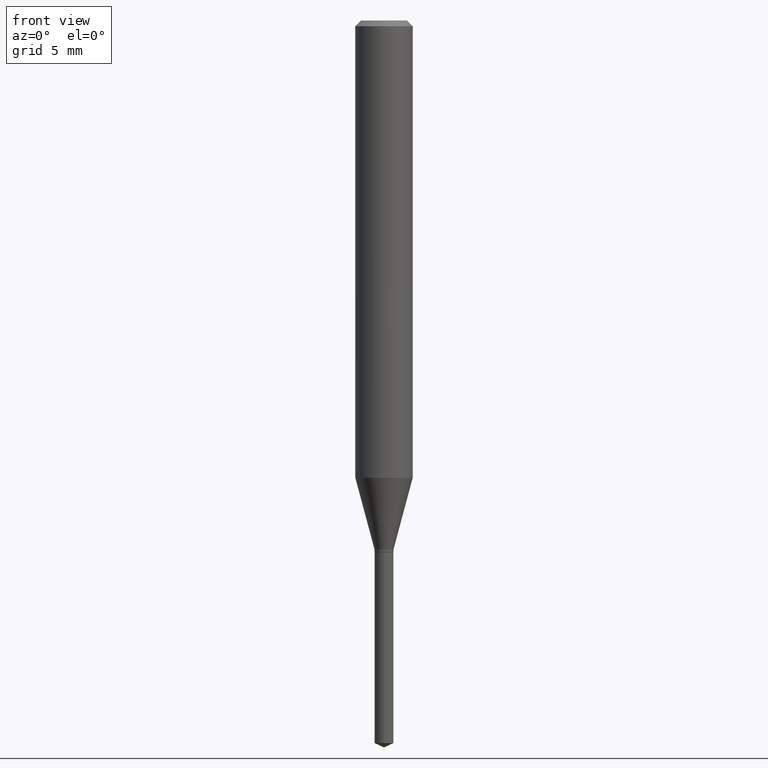
[diagram: clean part render]
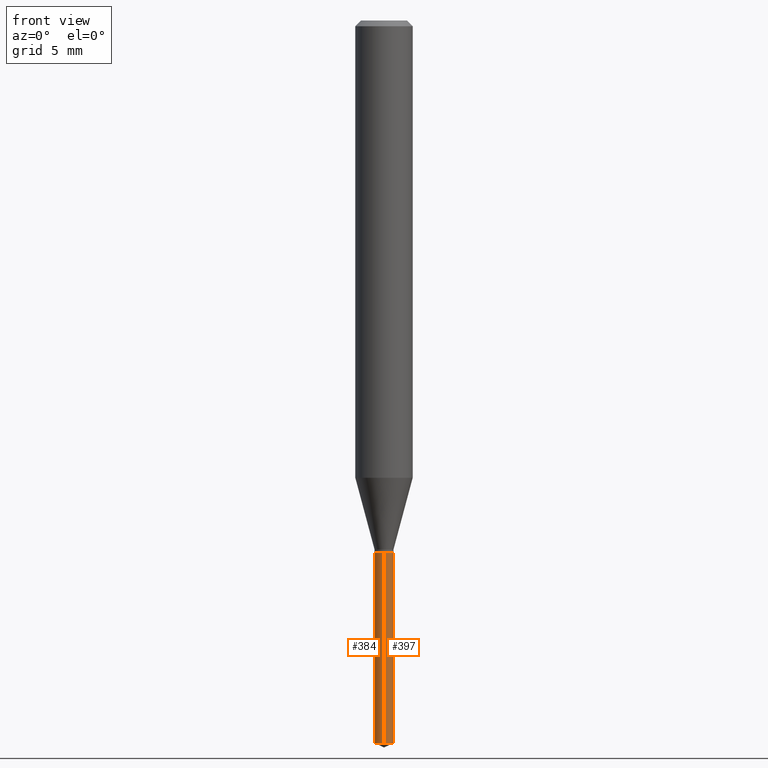
[diagram: same view with one multi-face feature highlighted, each face labeled with its STEP entity id]
A machine part, front view. The highlighted faces form ONE feature: a constant-radius fillet chain: 2 tangent blend faces with common blend radius 0.4953 mm. The faces share edges in the B-rep.
Their STEP definitions:
[1] entity #384 (Cylinder):
#24 = DIRECTION ( 'NONE',  ( -6.982962677686264344E-15, -1.000000000000000000, 0.000000000000000000 ) ) ;
#49 = EDGE_CURVE ( 'NONE', #75, #490, #120, .T. ) ;
#68 = ORIENTED_EDGE ( 'NONE', *, *, #451, .T. ) ;
#75 = VERTEX_POINT ( 'NONE', #325 ) ;
#76 = DIRECTION ( 'NONE',  ( -6.982962677686264344E-15, -1.000000000000000000, 0.000000000000000000 ) ) ;
#78 = VECTOR ( 'NONE', #386, 39.37007874015748143 ) ;
#86 = EDGE_LOOP ( 'NONE', ( #453, #378, #68, #192 ) ) ;
#106 = VERTEX_POINT ( 'NONE', #245 ) ;
#120 = CIRCLE ( 'NONE', #185, 0.01949999999999999997 ) ;
#125 = DIRECTION ( 'NONE',  ( -6.982962677686264344E-15, -1.000000000000000000, 0.000000000000000000 ) ) ;
#126 = LINE ( 'NONE', #238, #276 ) ;
#166 = EDGE_CURVE ( 'NONE', #106, #372, #283, .T. ) ;
#169 = DIRECTION ( 'NONE',  ( -2.445460715294871217E-29, 3.491492925458510144E-15, 1.000000000000000000 ) ) ;
#185 = AXIS2_PLACEMENT_3D ( 'NONE', #199, #200, #125 ) ;
#192 = ORIENTED_EDGE ( 'NONE', *, *, #166, .F. ) ;
#193 = EDGE_CURVE ( 'NONE', #75, #106, #389, .T. ) ;
#199 = CARTESIAN_POINT ( 'NONE',  ( 3.636426058976498027E-29, -5.191861741382022382E-15, -1.487007000665977685 ) ) ;
#200 = DIRECTION ( 'NONE',  ( -2.445460715294871217E-29, 3.491492925458510144E-15, 1.000000000000000000 ) ) ;
#230 = CARTESIAN_POINT ( 'NONE',  ( 2.676565608369631794E-29, -3.821426325363822773E-15, -1.094499999999999806 ) ) ;
#238 = CARTESIAN_POINT ( 'NONE',  ( -1.361677722148554121E-16, -0.01950000000000381983, -1.094499999999999806 ) ) ;
#245 = CARTESIAN_POINT ( 'NONE',  ( 1.385558334732559469E-16, 0.01949999999999617664, -1.094499999999999806 ) ) ;
#276 = VECTOR ( 'NONE', #169, 39.37007874015748143 ) ;
#280 = DIRECTION ( 'NONE',  ( -2.445460715294871217E-29, 3.491492925458510144E-15, 1.000000000000000000 ) ) ;
#283 = CIRCLE ( 'NONE', #425, 0.01949999999999999997 ) ;
#325 = CARTESIAN_POINT ( 'NONE',  ( 1.385558334732558236E-16, 0.01949999999999480274, -1.487007000665977685 ) ) ;
#342 = DIRECTION ( 'NONE',  ( -2.445460715294871217E-29, 3.491492925458510144E-15, 1.000000000000000000 ) ) ;
#358 = CARTESIAN_POINT ( 'NONE',  ( 2.676565608369631794E-29, -3.821426325363822773E-15, -1.094499999999999806 ) ) ;
#372 = VERTEX_POINT ( 'NONE', #487 ) ;
#376 = CARTESIAN_POINT ( 'NONE',  ( -1.361677722148457732E-16, -0.01950000000000518333, -1.487007000665977685 ) ) ;
#378 = ORIENTED_EDGE ( 'NONE', *, *, #49, .T. ) ;
#384 = ADVANCED_FACE ( 'NONE', ( #406 ), #409, .T. ) ;
#386 = DIRECTION ( 'NONE',  ( -2.445460715294871217E-29, 3.491492925458510144E-15, 1.000000000000000000 ) ) ;
#389 = LINE ( 'NONE', #422, #78 ) ;
#406 = FACE_OUTER_BOUND ( 'NONE', #86, .T. ) ;
#409 = CYLINDRICAL_SURFACE ( 'NONE', #440, 0.01949999999999999997 ) ;
#422 = CARTESIAN_POINT ( 'NONE',  ( 1.385558334732462587E-16, 0.01949999999999617664, -1.094499999999999806 ) ) ;
#425 = AXIS2_PLACEMENT_3D ( 'NONE', #358, #280, #24 ) ;
#440 = AXIS2_PLACEMENT_3D ( 'NONE', #230, #342, #76 ) ;
#451 = EDGE_CURVE ( 'NONE', #490, #372, #126, .T. ) ;
#453 = ORIENTED_EDGE ( 'NONE', *, *, #193, .F. ) ;
#487 = CARTESIAN_POINT ( 'NONE',  ( -1.361677722148554121E-16, -0.01950000000000381983, -1.094499999999999806 ) ) ;
#490 = VERTEX_POINT ( 'NONE', #376 ) ;
[2] entity #397 (Cylinder):
#7 = FACE_OUTER_BOUND ( 'NONE', #482, .T. ) ;
#9 = DIRECTION ( 'NONE',  ( -6.982962677686264344E-15, -1.000000000000000000, 0.000000000000000000 ) ) ;
#22 = AXIS2_PLACEMENT_3D ( 'NONE', #446, #82, #9 ) ;
#32 = DIRECTION ( 'NONE',  ( -6.982962677686264344E-15, -1.000000000000000000, 0.000000000000000000 ) ) ;
#48 = ORIENTED_EDGE ( 'NONE', *, *, #255, .F. ) ;
#65 = EDGE_CURVE ( 'NONE', #490, #75, #138, .T. ) ;
#75 = VERTEX_POINT ( 'NONE', #325 ) ;
#78 = VECTOR ( 'NONE', #386, 39.37007874015748143 ) ;
#82 = DIRECTION ( 'NONE',  ( -2.445460715294871217E-29, 3.491492925458510144E-15, 1.000000000000000000 ) ) ;
#98 = DIRECTION ( 'NONE',  ( -6.982962677686264344E-15, -1.000000000000000000, 0.000000000000000000 ) ) ;
#106 = VERTEX_POINT ( 'NONE', #245 ) ;
#123 = ORIENTED_EDGE ( 'NONE', *, *, #65, .T. ) ;
#126 = LINE ( 'NONE', #238, #276 ) ;
#138 = CIRCLE ( 'NONE', #144, 0.01949999999999999997 ) ;
#144 = AXIS2_PLACEMENT_3D ( 'NONE', #254, #247, #98 ) ;
#151 = DIRECTION ( 'NONE',  ( -2.445460715294871217E-29, 3.491492925458510144E-15, 1.000000000000000000 ) ) ;
#169 = DIRECTION ( 'NONE',  ( -2.445460715294871217E-29, 3.491492925458510144E-15, 1.000000000000000000 ) ) ;
#180 = AXIS2_PLACEMENT_3D ( 'NONE', #360, #151, #32 ) ;
#193 = EDGE_CURVE ( 'NONE', #75, #106, #389, .T. ) ;
#206 = ORIENTED_EDGE ( 'NONE', *, *, #451, .F. ) ;
#238 = CARTESIAN_POINT ( 'NONE',  ( -1.361677722148554121E-16, -0.01950000000000381983, -1.094499999999999806 ) ) ;
#239 = ORIENTED_EDGE ( 'NONE', *, *, #193, .T. ) ;
#245 = CARTESIAN_POINT ( 'NONE',  ( 1.385558334732559469E-16, 0.01949999999999617664, -1.094499999999999806 ) ) ;
#247 = DIRECTION ( 'NONE',  ( -2.445460715294871217E-29, 3.491492925458510144E-15, 1.000000000000000000 ) ) ;
#254 = CARTESIAN_POINT ( 'NONE',  ( 3.636426058976498027E-29, -5.191861741382022382E-15, -1.487007000665977685 ) ) ;
#255 = EDGE_CURVE ( 'NONE', #372, #106, #339, .T. ) ;
#276 = VECTOR ( 'NONE', #169, 39.37007874015748143 ) ;
#325 = CARTESIAN_POINT ( 'NONE',  ( 1.385558334732558236E-16, 0.01949999999999480274, -1.487007000665977685 ) ) ;
#339 = CIRCLE ( 'NONE', #180, 0.01949999999999999997 ) ;
#360 = CARTESIAN_POINT ( 'NONE',  ( 2.676565608369631794E-29, -3.821426325363822773E-15, -1.094499999999999806 ) ) ;
#372 = VERTEX_POINT ( 'NONE', #487 ) ;
#374 = CYLINDRICAL_SURFACE ( 'NONE', #22, 0.01949999999999999997 ) ;
#376 = CARTESIAN_POINT ( 'NONE',  ( -1.361677722148457732E-16, -0.01950000000000518333, -1.487007000665977685 ) ) ;
#386 = DIRECTION ( 'NONE',  ( -2.445460715294871217E-29, 3.491492925458510144E-15, 1.000000000000000000 ) ) ;
#389 = LINE ( 'NONE', #422, #78 ) ;
#397 = ADVANCED_FACE ( 'NONE', ( #7 ), #374, .T. ) ;
#422 = CARTESIAN_POINT ( 'NONE',  ( 1.385558334732462587E-16, 0.01949999999999617664, -1.094499999999999806 ) ) ;
#446 = CARTESIAN_POINT ( 'NONE',  ( 2.676565608369631794E-29, -3.821426325363822773E-15, -1.094499999999999806 ) ) ;
#451 = EDGE_CURVE ( 'NONE', #490, #372, #126, .T. ) ;
#482 = EDGE_LOOP ( 'NONE', ( #123, #239, #48, #206 ) ) ;
#487 = CARTESIAN_POINT ( 'NONE',  ( -1.361677722148554121E-16, -0.01950000000000381983, -1.094499999999999806 ) ) ;
#490 = VERTEX_POINT ( 'NONE', #376 ) ;